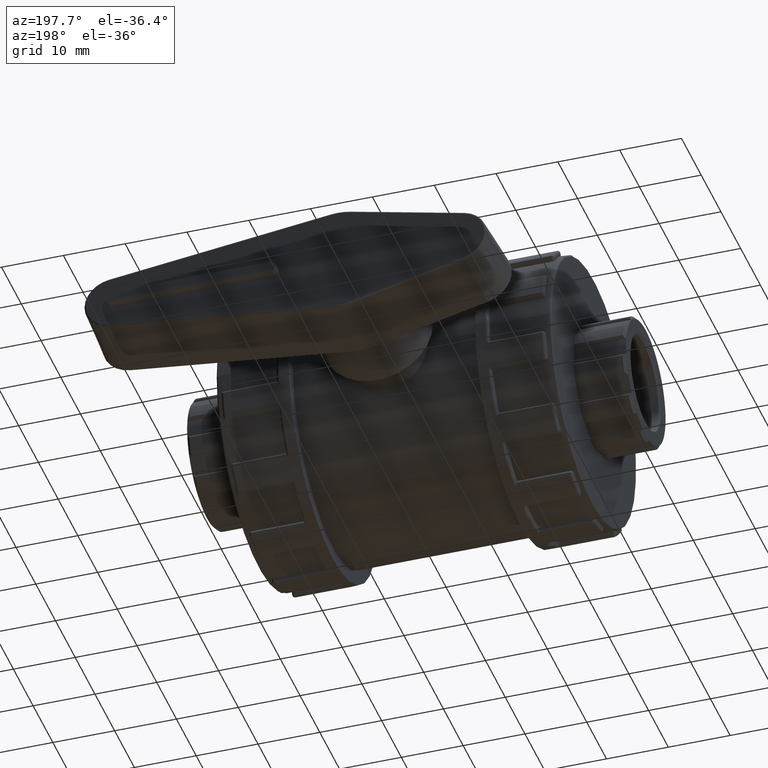
[diagram: clean part render]
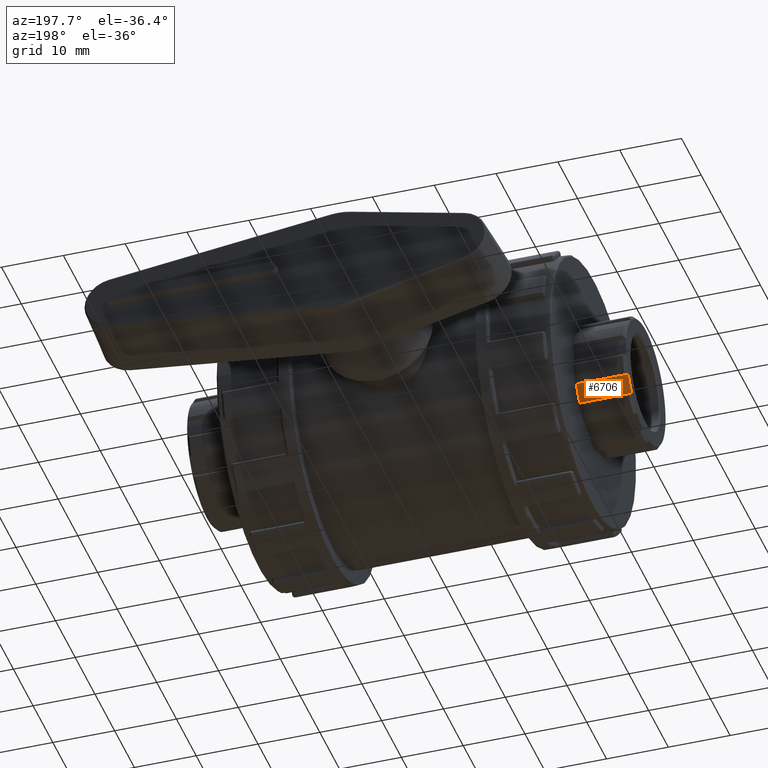
[diagram: same view with one face highlighted and labeled with its STEP entity id]
A machine part, auxiliary view. The second image highlights one B-rep face of the part: STEP entity #6706.
In plain terms, the highlighted cylindrical surface (partial cylindrical patch) has radius 10.0165 mm, axis along (-1, 0, 0).
Its self-contained STEP definition (entity closure, byte-faithful):
#509=FACE_OUTER_BOUND('',#947,.T.);
#947=EDGE_LOOP('',(#4686,#4687,#4688,#4689));
#1343=LINE('',#10445,#1739);
#1346=LINE('',#10486,#1742);
#1739=VECTOR('',#8145,8.4);
#1742=VECTOR('',#8162,8.4);
#2217=CIRCLE('',#7254,10.0165);
#2218=CIRCLE('',#7255,10.0165);
#2660=VERTEX_POINT('',#10427);
#2663=VERTEX_POINT('',#10432);
#2667=VERTEX_POINT('',#10468);
#2670=VERTEX_POINT('',#10484);
#3327=EDGE_CURVE('',#2663,#2660,#1343,.T.);
#3336=EDGE_CURVE('',#2667,#2670,#1346,.T.);
#3520=EDGE_CURVE('',#2663,#2667,#2217,.T.);
#3521=EDGE_CURVE('',#2660,#2670,#2218,.T.);
#4686=ORIENTED_EDGE('',*,*,#3520,.T.);
#4687=ORIENTED_EDGE('',*,*,#3336,.T.);
#4688=ORIENTED_EDGE('',*,*,#3521,.F.);
#4689=ORIENTED_EDGE('',*,*,#3327,.F.);
#6486=CYLINDRICAL_SURFACE('',#7253,10.0165);
#6706=ADVANCED_FACE('',(#509),#6486,.T.);
#7253=AXIS2_PLACEMENT_3D('',#11256,#8510,#8511);
#7254=AXIS2_PLACEMENT_3D('',#11257,#8512,#8513);
#7255=AXIS2_PLACEMENT_3D('',#11258,#8514,#8515);
#8145=DIRECTION('',(1.,0.,0.));
#8162=DIRECTION('',(1.,0.,0.));
#8510=DIRECTION('center_axis',(-1.,0.,0.));
#8511=DIRECTION('ref_axis',(0.,0.587785252292473,0.809016994374947));
#8512=DIRECTION('center_axis',(1.,0.,0.));
#8513=DIRECTION('ref_axis',(0.,-1.,0.));
#8514=DIRECTION('center_axis',(1.,0.,0.));
#8515=DIRECTION('ref_axis',(0.,0.587785252292473,0.809016994374947));
#10427=CARTESIAN_POINT('',(-27.1,7.13401169031944,-7.03108451466667));
#10432=CARTESIAN_POINT('',(-35.5,7.13401169031944,-7.03108451466667));
#10445=CARTESIAN_POINT('',(-35.5,7.13401169031944,-7.03108451466667));
#10468=CARTESIAN_POINT('',(-35.5,8.89148959467394,-4.61212370148558));
#10484=CARTESIAN_POINT('',(-27.1,8.89148959467394,-4.61212370148558));
#10486=CARTESIAN_POINT('',(-35.5,8.89148959467394,-4.61212370148558));
#11256=CARTESIAN_POINT('Origin',(-35.5,0.,0.));
#11257=CARTESIAN_POINT('Origin',(-35.5,0.,0.));
#11258=CARTESIAN_POINT('Origin',(-27.1,0.,0.));